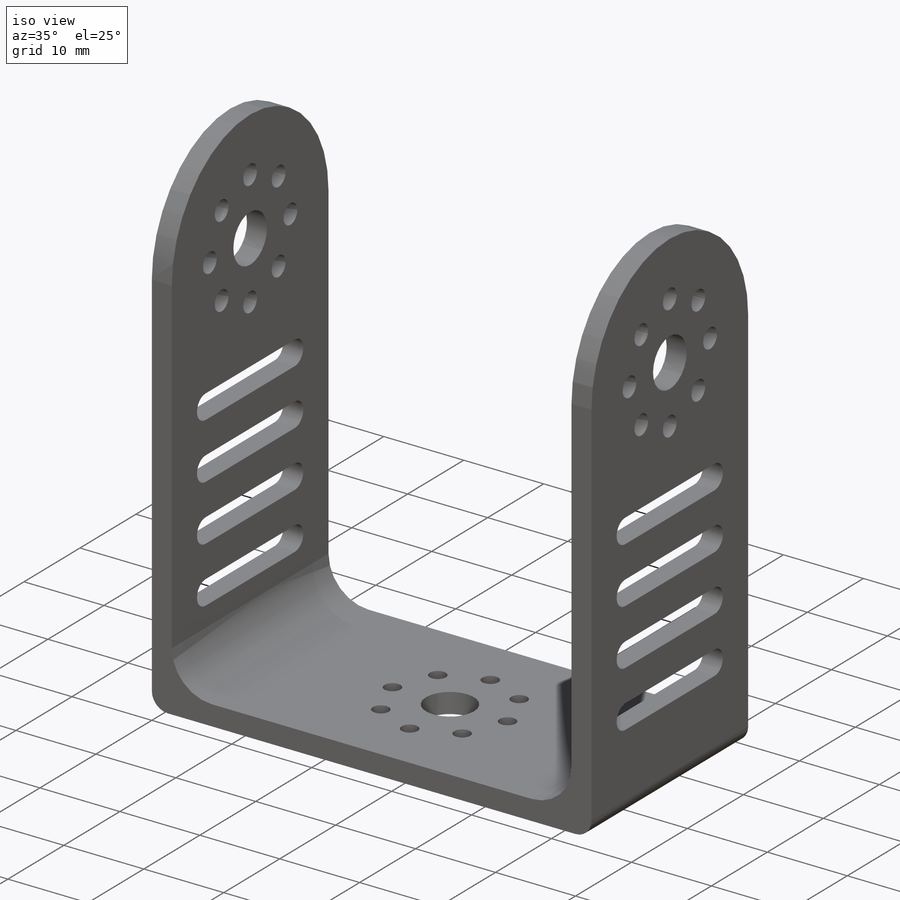
[diagram: iso view]
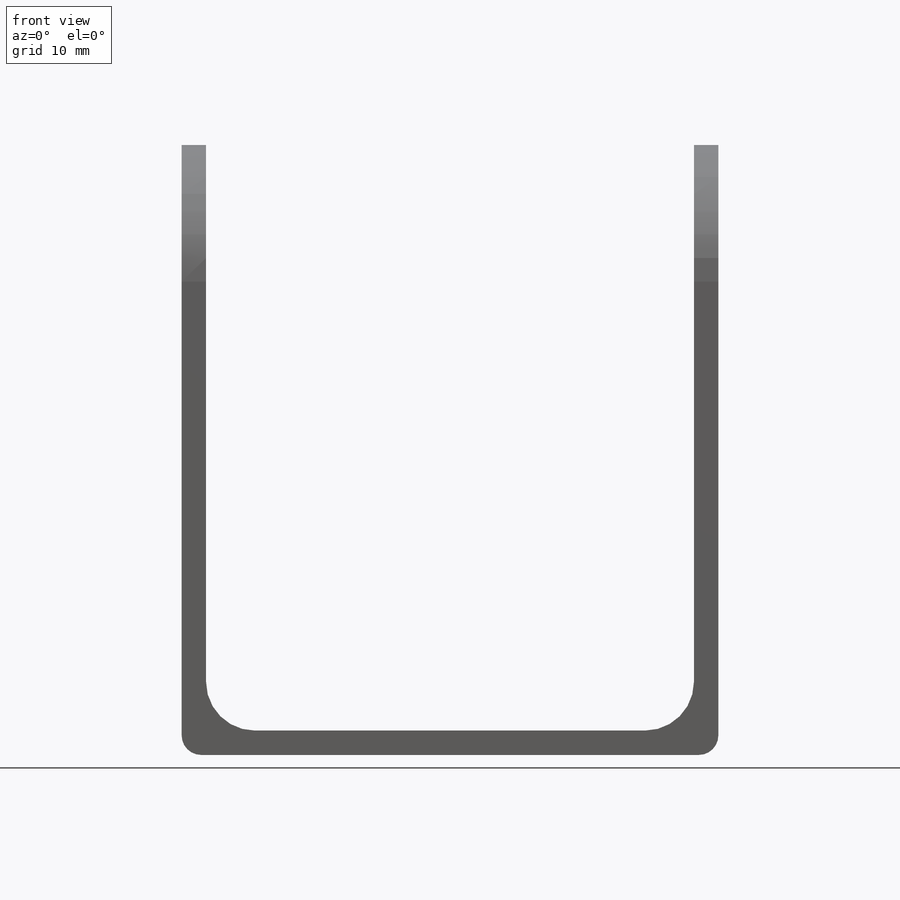
[diagram: front view]
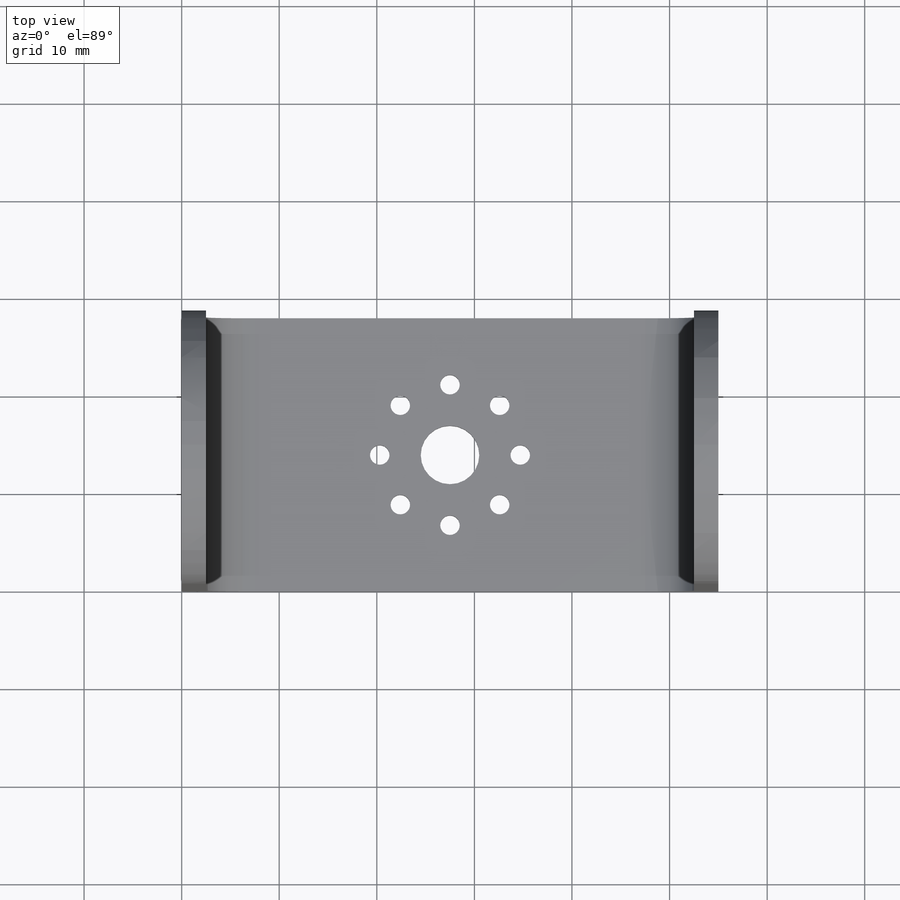
[diagram: top view]
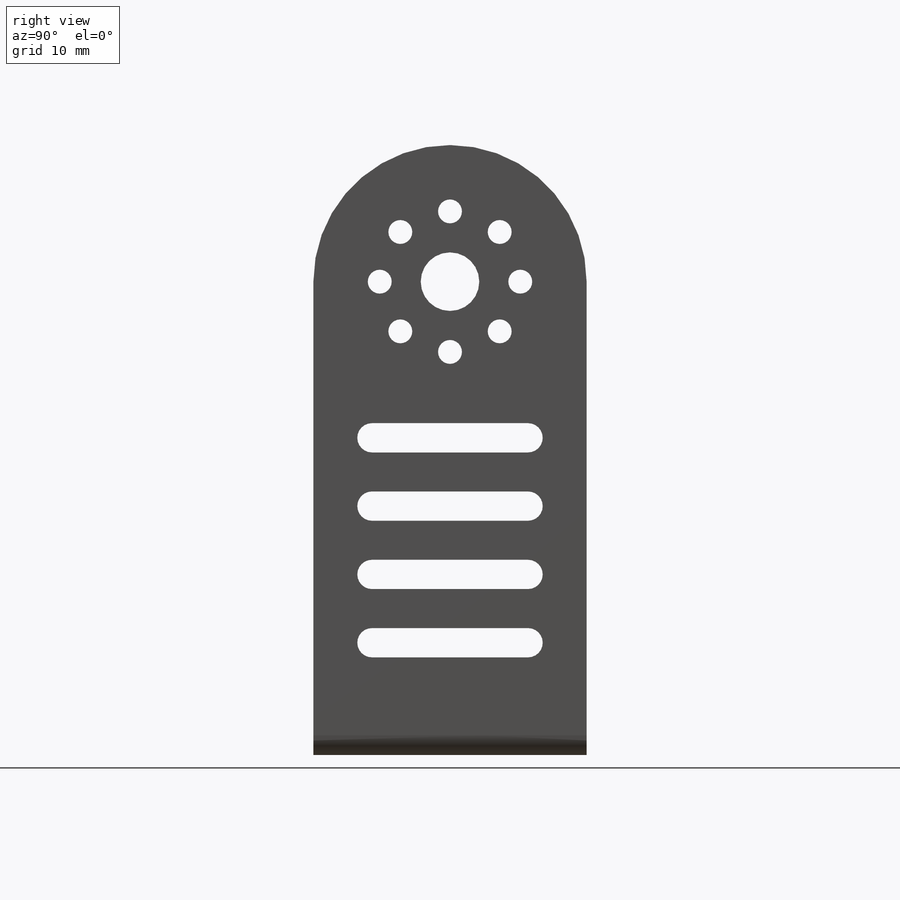
[diagram: right view]
SOLIDWORKS PART (.sldprt)
format: sldprt  version: not decoded by parser v0  size: 352,768 bytes
history: native  units: mm
features: plane x3, sketch x3, fillet x3, extrude x2, material x1, cut_extrude x1 (+10 scaffold rows collapsed)
feature tree (23):
  scaffold x10  (default folders/planes/origin — collapsed)
  material  "Matériau <non spécifié>"
  plane  "Plan de face"
  plane  "Plan de dessus"
  plane  "Plan de droite"
  sketch  "Esquisse1"  dims[c1.D7=2.0mm c1.D8=6.0mm c1.D1=55.0mm c1.D2=28.0mm c1.D3=20.0mm c1.D4=~22.457348mm c2.D3=27.5mm c2.D4=14.0mm c2.D5=7.2mm c2.D6=~5.325944mm c3.D6=45.0deg c3.D8=7.0mm c4.D8=45.0deg c5.D8=~11.360285mm c6.D8=45.0deg c6.D6=8.0]
  extrude  "Boss.-Extru.1"  Depth=2.5mm
  sketch  "Esquisse2"  dims[D1=2.5mm D2=2.5mm]
  extrude  "Boss.-Extru.2"  Depth=60mm
  fillet  "Congé1"  Radius=5mm
  fillet  "Congé2"  Radius=2mm
  sketch  "Esquisse3"  dims[c1.D10=1.5mm c1.D11=1.5mm c1.D12=1.5mm c1.D14=~2.449786mm c1.D15=~2.449786mm c1.D22=6.0mm c1.D1=30.0mm c1.D2=7.0mm c1.D3=7.0mm c1.D4=7.0mm c1.D5=14.0mm c1.D6=14.0mm c1.D7=14.0mm c1.D8=14.0mm c1.D9=3.0mm c1.D13=14.0mm c2.D14=7.2mm c2.D15=14.0mm c2.D16=14.0mm c2.D18=16.0mm c2.D19=16.0mm c2.D20=16.0mm c2.D21=16.0mm c2.D17=8.0]
  cut_extrude  "Enlèv. mat.-Extru.1"  Depth=55mm
  fillet  "Congé3"  Radius=14mm
decode coverage: 9 of 9 modeling features carry decoded parameters
note: ~ marks probable driven/reference dimensions
note: suppression state not decoded; provenance and decode notes live in map.json
